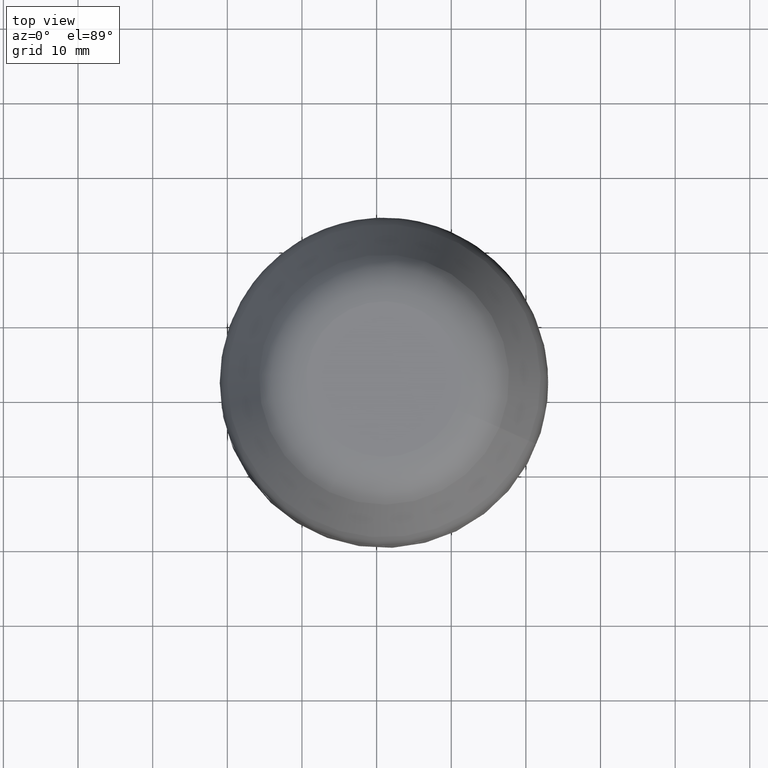
[diagram: clean part render]
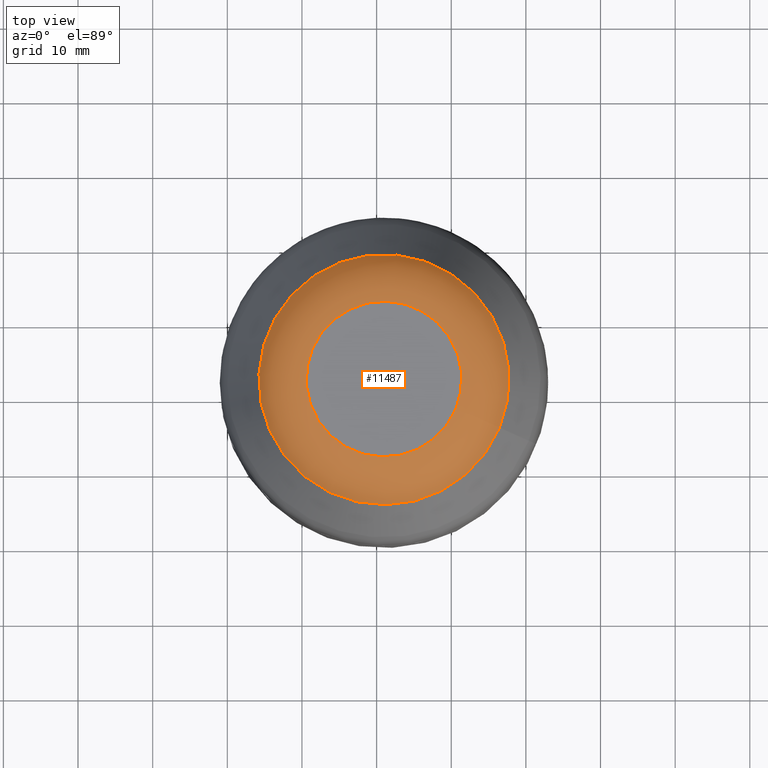
[diagram: same view with one face highlighted and labeled with its STEP entity id]
A machine part, top view. The second image highlights one B-rep face of the part: STEP entity #11487.
In plain terms, the highlighted toroidal blend (fillet) surface has major radius 10.4237 mm and minor (blend) radius 7 mm.
Its self-contained STEP definition (entity closure, byte-faithful):
#9317=TOROIDAL_SURFACE('',#36327,10.423707847525,7.00000000000003);
#11487=ADVANCED_FACE('',(#12803,#12804),#9317,.T.);
#12803=FACE_BOUND('',#14656,.T.);
#12804=FACE_BOUND('',#14657,.T.);
#14656=EDGE_LOOP('',(#24576));
#14657=EDGE_LOOP('',(#24577));
#24576=ORIENTED_EDGE('',*,*,#32804,.T.);
#24577=ORIENTED_EDGE('',*,*,#32805,.F.);
#27844=VERTEX_POINT('',#81889);
#27845=VERTEX_POINT('',#81891);
#32804=EDGE_CURVE('',#27844,#27844,#33669,.T.);
#32805=EDGE_CURVE('',#27845,#27845,#33670,.T.);
#33669=CIRCLE('',#36325,10.423707847525);
#33670=CIRCLE('',#36326,16.7678623567815);
#36325=AXIS2_PLACEMENT_3D('',#81888,#44863,#44864);
#36326=AXIS2_PLACEMENT_3D('',#81890,#44865,#44866);
#36327=AXIS2_PLACEMENT_3D('',#81892,#44867,#44868);
#44863=DIRECTION('',(0.,0.,-1.));
#44864=DIRECTION('',(0.923728021347068,-0.383049008063237,0.));
#44865=DIRECTION('',(0.,0.,-1.));
#44866=DIRECTION('',(0.923728021347068,-0.383049008063238,0.));
#44867=DIRECTION('',(0.,0.,-1.));
#44868=DIRECTION('',(-0.383049008063237,-0.923728021347068,0.));
#81888=CARTESIAN_POINT('',(0.991103575624624,1.7832801446816,20.3980097710218));
#81889=CARTESIAN_POINT('',(10.6197746007188,-2.20951080665382,20.3980097710218));
#81890=CARTESIAN_POINT('',(0.991103575624624,1.7832801446816,16.3563376032068));
#81891=CARTESIAN_POINT('',(16.4800478926744,-4.63963289842446,16.3563376032068));
#81892=CARTESIAN_POINT('',(0.991103575624624,1.7832801446816,13.3980097710218));